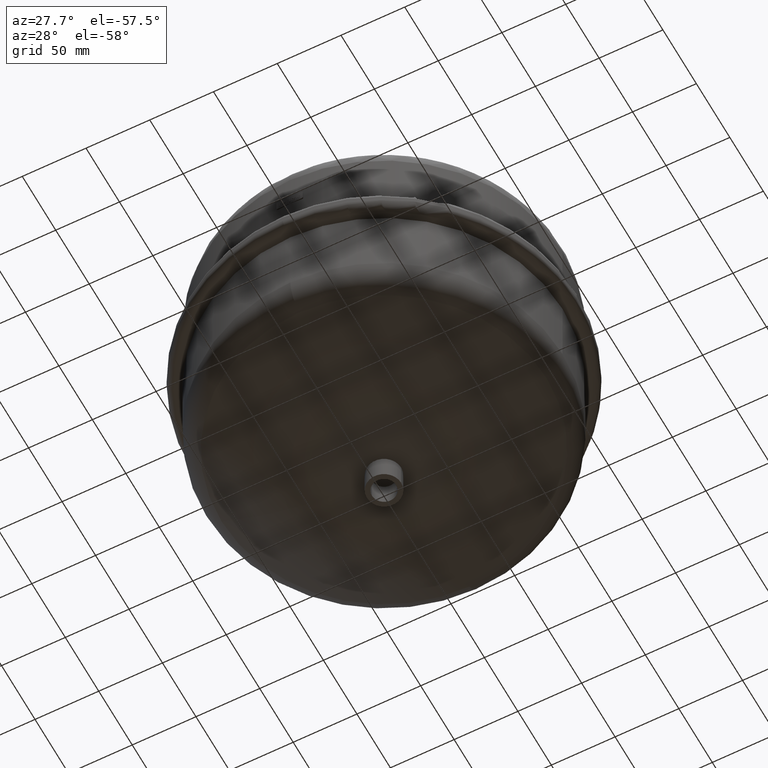
[diagram: clean part render]
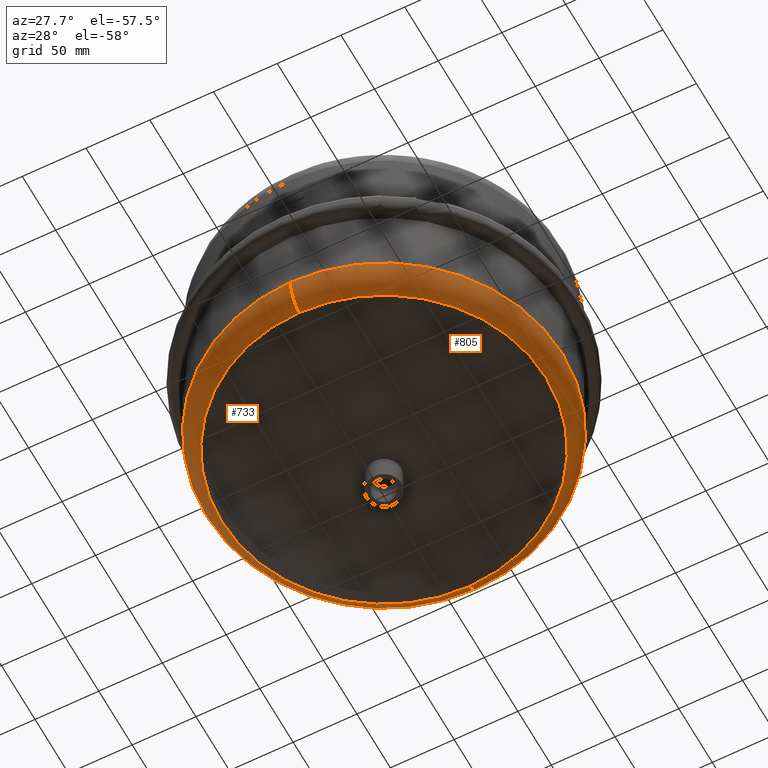
[diagram: same view with one multi-face feature highlighted, each face labeled with its STEP entity id]
A machine part, auxiliary view. The highlighted faces form ONE feature: a constant-radius fillet chain: 2 tangent blend faces with common blend radius 25 mm. The faces share edges in the B-rep.
Their STEP definitions:
[1] entity #733 (Torus):
#638=CARTESIAN_POINT('',(-139.99999999999997,1.180331E-016,74.357457576154587));
#639=VERTEX_POINT('',#638);
#663=CARTESIAN_POINT('',(-9.759320E-015,140.0,74.357457576154587));
#664=VERTEX_POINT('',#663);
#672=CARTESIAN_POINT('',(-1.190815E-016,1.180331E-016,74.357457576154559));
#673=DIRECTION('',(0.0,0.0,1.0));
#674=DIRECTION('',(-1.0,0.0,0.0));
#675=AXIS2_PLACEMENT_3D('',#672,#673,#674);
#676=CIRCLE('',#675,140.0);
#677=EDGE_CURVE('',#664,#639,#676,.T.);
#682=CARTESIAN_POINT('',(7.385169E-015,1.180331E-016,74.357457576154587));
#683=DIRECTION('',(1.853286E-016,-1.836970E-016,1.0));
#684=DIRECTION('',(0.0,-1.0,0.0));
#685=AXIS2_PLACEMENT_3D('',#682,#683,#684);
#686=TOROIDAL_SURFACE('',#685,115.00000000000001,25.0);
#687=CARTESIAN_POINT('',(7.385169E-015,-140.0,74.35745757615453));
#688=VERTEX_POINT('',#687);
#689=CARTESIAN_POINT('',(3.355614E-015,-127.33905579399143,52.614695513510156));
#690=VERTEX_POINT('',#689);
#691=CARTESIAN_POINT('',(7.385169E-015,-115.00000000000001,74.357457576154559));
#692=DIRECTION('',(1.0,0.0,0.0));
#693=DIRECTION('',(0.0,-1.0,0.0));
#694=AXIS2_PLACEMENT_3D('',#691,#692,#693);
#695=CIRCLE('',#694,25.0);
#696=EDGE_CURVE('',#688,#690,#695,.T.);
#697=ORIENTED_EDGE('',*,*,#696,.F.);
#698=CARTESIAN_POINT('',(-1.190815E-016,1.180331E-016,74.357457576154559));
#699=DIRECTION('',(0.0,0.0,1.0));
#700=DIRECTION('',(-1.0,0.0,0.0));
#701=AXIS2_PLACEMENT_3D('',#698,#699,#700);
#702=CIRCLE('',#701,140.0);
#703=EDGE_CURVE('',#639,#688,#702,.T.);
#704=ORIENTED_EDGE('',*,*,#703,.F.);
#705=ORIENTED_EDGE('',*,*,#677,.F.);
#706=CARTESIAN_POINT('',(-1.223841E-014,127.33905579399143,52.614695513510206));
#707=VERTEX_POINT('',#706);
#708=CARTESIAN_POINT('',(-6.697804E-015,115.00000000000001,74.357457576154616));
#709=DIRECTION('',(-1.0,0.0,0.0));
#710=DIRECTION('',(0.0,1.0,0.0));
#711=AXIS2_PLACEMENT_3D('',#708,#709,#710);
#712=CIRCLE('',#711,25.0);
#713=EDGE_CURVE('',#664,#707,#712,.T.);
#714=ORIENTED_EDGE('',*,*,#713,.T.);
#715=CARTESIAN_POINT('',(-127.33905579399145,4.112114E-015,52.614695513510199));
#716=VERTEX_POINT('',#715);
#717=CARTESIAN_POINT('',(-4.148636E-015,4.112114E-015,52.614695513510178));
#718=DIRECTION('',(0.0,0.0,1.0));
#719=DIRECTION('',(-1.0,0.0,0.0));
#720=AXIS2_PLACEMENT_3D('',#717,#718,#719);
#721=CIRCLE('',#720,127.33905579399143);
#722=EDGE_CURVE('',#707,#716,#721,.T.);
#723=ORIENTED_EDGE('',*,*,#722,.T.);
#724=CARTESIAN_POINT('',(-4.148636E-015,4.112114E-015,52.614695513510178));
#725=DIRECTION('',(0.0,0.0,1.0));
#726=DIRECTION('',(-1.0,0.0,0.0));
#727=AXIS2_PLACEMENT_3D('',#724,#725,#726);
#728=CIRCLE('',#727,127.33905579399143);
#729=EDGE_CURVE('',#716,#690,#728,.T.);
#730=ORIENTED_EDGE('',*,*,#729,.T.);
#731=EDGE_LOOP('',(#697,#704,#705,#714,#723,#730));
#732=FACE_OUTER_BOUND('',#731,.T.);
#733=ADVANCED_FACE('',(#732),#686,.T.);
[2] entity #805 (Torus):
#655=CARTESIAN_POINT('',(140.0,1.726252E-014,74.35745757615453));
#656=VERTEX_POINT('',#655);
#663=CARTESIAN_POINT('',(-9.759320E-015,140.0,74.357457576154587));
#664=VERTEX_POINT('',#663);
#665=CARTESIAN_POINT('',(-1.190815E-016,1.180331E-016,74.357457576154559));
#666=DIRECTION('',(0.0,0.0,1.0));
#667=DIRECTION('',(-1.0,0.0,0.0));
#668=AXIS2_PLACEMENT_3D('',#665,#666,#667);
#669=CIRCLE('',#668,140.0);
#670=EDGE_CURVE('',#656,#664,#669,.T.);
#687=CARTESIAN_POINT('',(7.385169E-015,-140.0,74.35745757615453));
#688=VERTEX_POINT('',#687);
#689=CARTESIAN_POINT('',(3.355614E-015,-127.33905579399143,52.614695513510156));
#690=VERTEX_POINT('',#689);
#691=CARTESIAN_POINT('',(7.385169E-015,-115.00000000000001,74.357457576154559));
#692=DIRECTION('',(1.0,0.0,0.0));
#693=DIRECTION('',(0.0,-1.0,0.0));
#694=AXIS2_PLACEMENT_3D('',#691,#692,#693);
#695=CIRCLE('',#694,25.0);
#696=EDGE_CURVE('',#688,#690,#695,.T.);
#706=CARTESIAN_POINT('',(-1.223841E-014,127.33905579399143,52.614695513510206));
#707=VERTEX_POINT('',#706);
#708=CARTESIAN_POINT('',(-6.697804E-015,115.00000000000001,74.357457576154616));
#709=DIRECTION('',(-1.0,0.0,0.0));
#710=DIRECTION('',(0.0,1.0,0.0));
#711=AXIS2_PLACEMENT_3D('',#708,#709,#710);
#712=CIRCLE('',#711,25.0);
#713=EDGE_CURVE('',#664,#707,#712,.T.);
#739=CARTESIAN_POINT('',(127.33905579399143,-3.710680E-014,52.614695513510163));
#740=VERTEX_POINT('',#739);
#750=CARTESIAN_POINT('',(-4.148636E-015,4.112114E-015,52.614695513510178));
#751=DIRECTION('',(0.0,0.0,1.0));
#752=DIRECTION('',(-1.0,0.0,0.0));
#753=AXIS2_PLACEMENT_3D('',#750,#751,#752);
#754=CIRCLE('',#753,127.33905579399143);
#755=EDGE_CURVE('',#690,#740,#754,.T.);
#776=CARTESIAN_POINT('',(-4.148636E-015,4.112114E-015,52.614695513510178));
#777=DIRECTION('',(0.0,0.0,1.0));
#778=DIRECTION('',(-1.0,0.0,0.0));
#779=AXIS2_PLACEMENT_3D('',#776,#777,#778);
#780=CIRCLE('',#779,127.33905579399143);
#781=EDGE_CURVE('',#740,#707,#780,.T.);
#786=CARTESIAN_POINT('',(7.385169E-015,1.180331E-016,74.357457576154587));
#787=DIRECTION('',(1.853286E-016,-1.836970E-016,1.0));
#788=DIRECTION('',(0.0,-1.0,0.0));
#789=AXIS2_PLACEMENT_3D('',#786,#787,#788);
#790=TOROIDAL_SURFACE('',#789,115.00000000000001,25.0);
#791=ORIENTED_EDGE('',*,*,#696,.T.);
#792=ORIENTED_EDGE('',*,*,#755,.T.);
#793=ORIENTED_EDGE('',*,*,#781,.T.);
#794=ORIENTED_EDGE('',*,*,#713,.F.);
#795=ORIENTED_EDGE('',*,*,#670,.F.);
#796=CARTESIAN_POINT('',(-1.190815E-016,1.180331E-016,74.357457576154559));
#797=DIRECTION('',(0.0,0.0,1.0));
#798=DIRECTION('',(-1.0,0.0,0.0));
#799=AXIS2_PLACEMENT_3D('',#796,#797,#798);
#800=CIRCLE('',#799,140.0);
#801=EDGE_CURVE('',#688,#656,#800,.T.);
#802=ORIENTED_EDGE('',*,*,#801,.F.);
#803=EDGE_LOOP('',(#791,#792,#793,#794,#795,#802));
#804=FACE_OUTER_BOUND('',#803,.T.);
#805=ADVANCED_FACE('',(#804),#790,.T.);